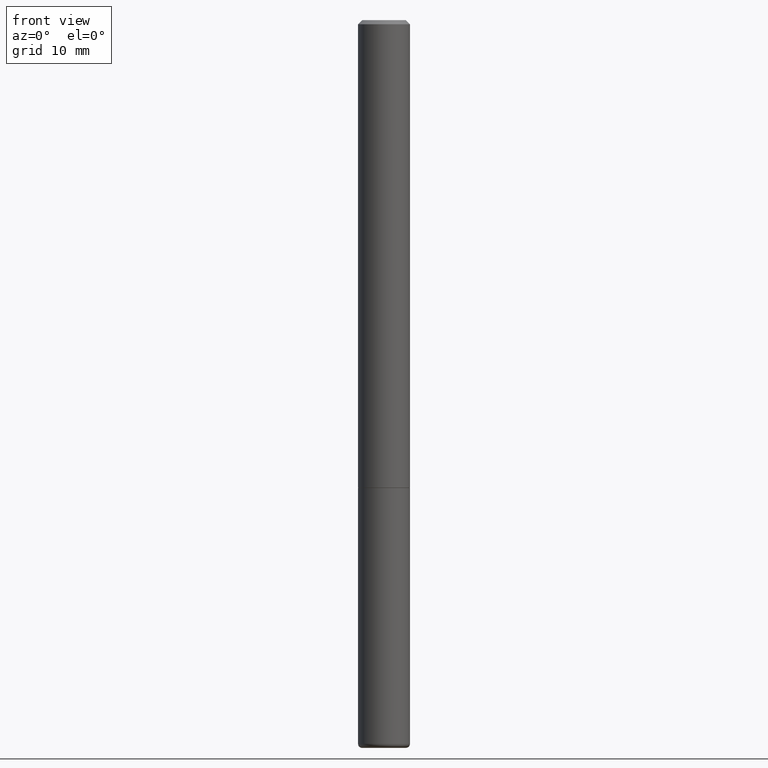
[diagram: clean part render]
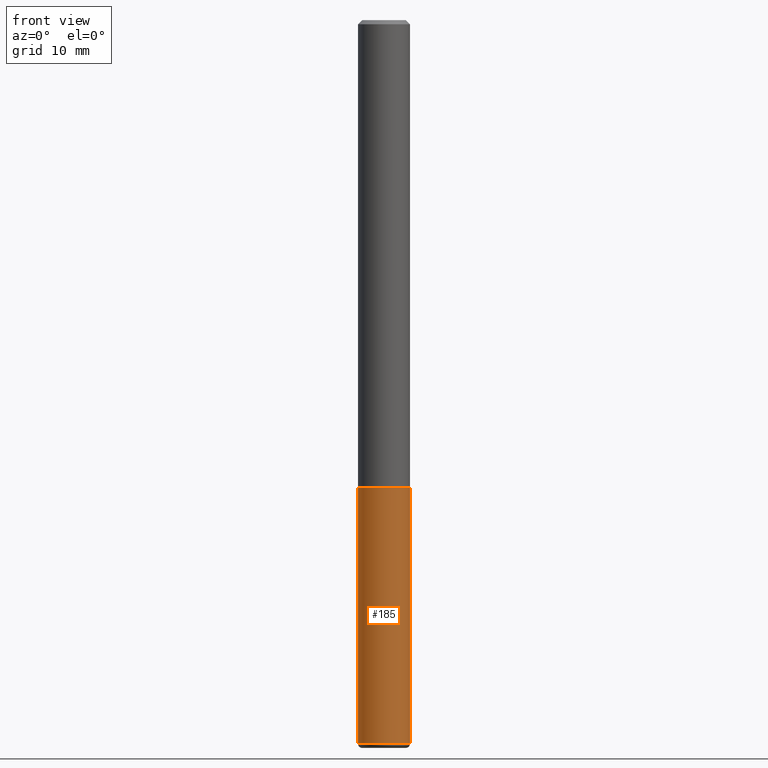
[diagram: same view with one face highlighted and labeled with its STEP entity id]
A machine part, front view. The second image highlights one B-rep face of the part: STEP entity #185.
In plain terms, the highlighted cylindrical surface (edge-blend (fillet) strip) has radius 3.175 mm, axis along (-0, 0, 1).
Its self-contained STEP definition (entity closure, byte-faithful):
#17 = CARTESIAN_POINT ( 'NONE',  ( -0.1250000000000000000, 8.881784197001252323E-16, -6.148668862818632227E-30 ) ) ;
#37 = CIRCLE ( 'NONE', #263, 0.1250000000000000000 ) ;
#46 = VERTEX_POINT ( 'NONE', #182 ) ;
#64 = VERTEX_POINT ( 'NONE', #417 ) ;
#67 = LINE ( 'NONE', #413, #204 ) ;
#82 = DIRECTION ( 'NONE',  ( 1.000000000000000000, -6.982962677686270655E-15, 0.000000000000000000 ) ) ;
#85 = ORIENTED_EDGE ( 'NONE', *, *, #400, .T. ) ;
#95 = DIRECTION ( 'NONE',  ( -2.445468806185136877E-29, 3.491481338843145188E-15, 1.000000000000000000 ) ) ;
#146 = CARTESIAN_POINT ( 'NONE',  ( -0.1250000000000000000, -9.114916945534594439E-15, -2.249999999999999556 ) ) ;
#161 = VERTEX_POINT ( 'NONE', #146 ) ;
#167 = CARTESIAN_POINT ( 'NONE',  ( 5.502304813916556222E-29, -7.855833012397075293E-15, -2.249999999999999556 ) ) ;
#182 = CARTESIAN_POINT ( 'NONE',  ( -0.1250000000000000000, -9.114916945534594439E-15, -3.480000761538716514 ) ) ;
#185 = ADVANCED_FACE ( 'NONE', ( #429 ), #428, .T. ) ;
#204 = VECTOR ( 'NONE', #95, 39.37007874015748143 ) ;
#208 = ORIENTED_EDGE ( 'NONE', *, *, #259, .F. ) ;
#231 = CIRCLE ( 'NONE', #332, 0.1250000000000000000 ) ;
#259 = EDGE_CURVE ( 'NONE', #161, #64, #37, .T. ) ;
#263 = AXIS2_PLACEMENT_3D ( 'NONE', #167, #467, #82 ) ;
#281 = EDGE_CURVE ( 'NONE', #46, #161, #462, .T. ) ;
#293 = VECTOR ( 'NONE', #316, 39.37007874015748143 ) ;
#312 = DIRECTION ( 'NONE',  ( 1.000000000000000000, -6.982962677686266711E-15, 4.876176775795935793E-29 ) ) ;
#316 = DIRECTION ( 'NONE',  ( -2.445468806185136877E-29, 3.491481338843145188E-15, 1.000000000000000000 ) ) ;
#332 = AXIS2_PLACEMENT_3D ( 'NONE', #371, #408, #376 ) ;
#354 = EDGE_CURVE ( 'NONE', #432, #64, #67, .T. ) ;
#360 = DIRECTION ( 'NONE',  ( -2.445468806185136597E-29, 3.491481338843145583E-15, 1.000000000000000000 ) ) ;
#371 = CARTESIAN_POINT ( 'NONE',  ( 8.510233307843451119E-29, -1.215035771807236405E-14, -3.480000761538716514 ) ) ;
#376 = DIRECTION ( 'NONE',  ( 1.000000000000000000, -6.982962677686262766E-15, 0.000000000000000000 ) ) ;
#400 = EDGE_CURVE ( 'NONE', #46, #432, #231, .T. ) ;
#402 = CARTESIAN_POINT ( 'NONE',  ( 0.000000000000000000, 0.000000000000000000, 0.000000000000000000 ) ) ;
#405 = EDGE_LOOP ( 'NONE', ( #460, #85, #463, #208 ) ) ;
#408 = DIRECTION ( 'NONE',  ( -2.445468806185136597E-29, 3.491481338843145583E-15, 1.000000000000000000 ) ) ;
#412 = CARTESIAN_POINT ( 'NONE',  ( 0.1250000000000000000, -1.302322805278314581E-14, -3.480000761538716514 ) ) ;
#413 = CARTESIAN_POINT ( 'NONE',  ( 0.1250000000000000000, -8.728703347107833388E-16, 6.095220969744919741E-30 ) ) ;
#417 = CARTESIAN_POINT ( 'NONE',  ( 0.1250000000000000000, -8.728703347107860209E-15, -2.249999999999999556 ) ) ;
#428 = CYLINDRICAL_SURFACE ( 'NONE', #433, 0.1250000000000000000 ) ;
#429 = FACE_OUTER_BOUND ( 'NONE', #405, .T. ) ;
#432 = VERTEX_POINT ( 'NONE', #412 ) ;
#433 = AXIS2_PLACEMENT_3D ( 'NONE', #402, #360, #312 ) ;
#460 = ORIENTED_EDGE ( 'NONE', *, *, #281, .F. ) ;
#462 = LINE ( 'NONE', #17, #293 ) ;
#463 = ORIENTED_EDGE ( 'NONE', *, *, #354, .T. ) ;
#467 = DIRECTION ( 'NONE',  ( -2.445468806185136597E-29, 3.491481338843145583E-15, 1.000000000000000000 ) ) ;